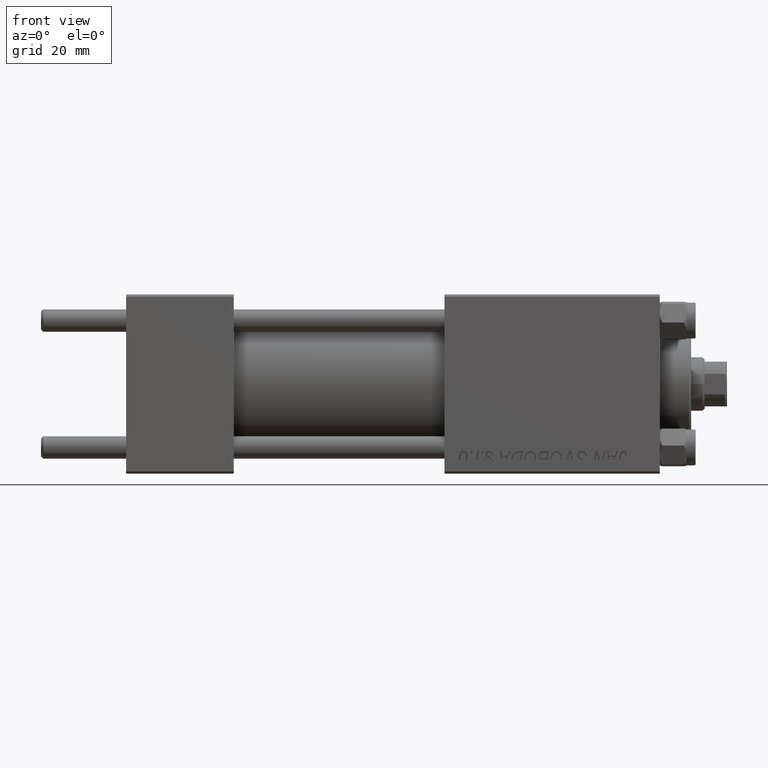
[diagram: clean part render]
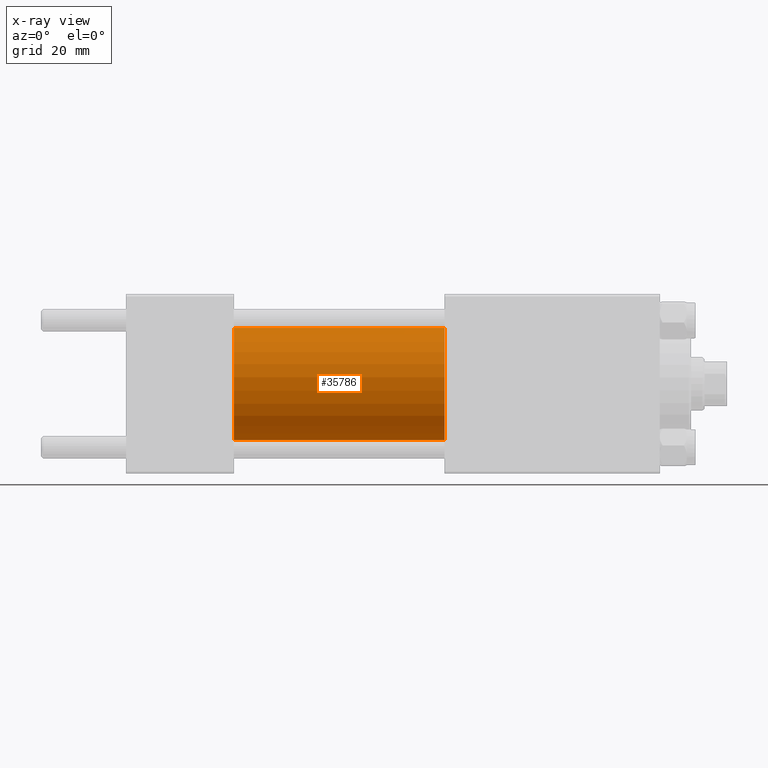
[diagram: x-ray — body ghosted, one internal face saturated and labeled with its STEP entity id]
A machine part, front view, then the same camera in x-ray: the body is ghosted and one INTERNAL B-rep face — a face not visible from any outside direction — is saturated and labeled: STEP entity #35786.
In plain terms, the highlighted cylindrical surface (partial cylindrical patch) has radius 12.5 mm, axis along (-1, -0, -0).
Its self-contained STEP definition (entity closure, byte-faithful):
#890 = VECTOR ( 'NONE', #36552, 1000.000000000000000 ) ;
#1722 = AXIS2_PLACEMENT_3D ( 'NONE', #16631, #36031, #8789 ) ;
#4030 = CARTESIAN_POINT ( 'NONE',  ( 71.00000000000001421, 0.000000000000000000, 0.000000000000000000 ) ) ;
#5508 = LINE ( 'NONE', #29245, #890 ) ;
#5564 = CARTESIAN_POINT ( 'NONE',  ( 71.00000000000001421, 0.000000000000000000, 12.49999999999999645 ) ) ;
#5766 = VECTOR ( 'NONE', #20892, 1000.000000000000000 ) ;
#6176 = CARTESIAN_POINT ( 'NONE',  ( 71.00000000000001421, 0.000000000000000000, 0.000000000000000000 ) ) ;
#8789 = DIRECTION ( 'NONE',  ( 0.000000000000000000, 0.000000000000000000, -1.000000000000000000 ) ) ;
#10598 = CIRCLE ( 'NONE', #1722, 12.49999999999999645 ) ;
#10854 = ORIENTED_EDGE ( 'NONE', *, *, #45034, .F. ) ;
#11603 = ORIENTED_EDGE ( 'NONE', *, *, #21379, .T. ) ;
#14264 = FACE_OUTER_BOUND ( 'NONE', #19233, .T. ) ;
#15993 = CARTESIAN_POINT ( 'NONE',  ( 24.00000000000000000, 0.000000000000000000, 12.49999999999999645 ) ) ;
#16063 = VERTEX_POINT ( 'NONE', #5564 ) ;
#16631 = CARTESIAN_POINT ( 'NONE',  ( 24.00000000000000000, 0.000000000000000000, 0.000000000000000000 ) ) ;
#17688 = AXIS2_PLACEMENT_3D ( 'NONE', #4030, #27530, #27024 ) ;
#17963 = ORIENTED_EDGE ( 'NONE', *, *, #43160, .T. ) ;
#18194 = VERTEX_POINT ( 'NONE', #15993 ) ;
#19233 = EDGE_LOOP ( 'NONE', ( #11603, #17963, #10854, #48186 ) ) ;
#20892 = DIRECTION ( 'NONE',  ( -1.000000000000000000, -0.000000000000000000, -0.000000000000000000 ) ) ;
#21379 = EDGE_CURVE ( 'NONE', #16063, #24937, #31395, .T. ) ;
#22555 = AXIS2_PLACEMENT_3D ( 'NONE', #6176, #48339, #40999 ) ;
#24937 = VERTEX_POINT ( 'NONE', #34506 ) ;
#27024 = DIRECTION ( 'NONE',  ( 0.000000000000000000, 0.000000000000000000, -1.000000000000000000 ) ) ;
#27530 = DIRECTION ( 'NONE',  ( 1.000000000000000000, 0.000000000000000000, 0.000000000000000000 ) ) ;
#28470 = LINE ( 'NONE', #40058, #5766 ) ;
#28671 = CYLINDRICAL_SURFACE ( 'NONE', #22555, 12.49999999999999645 ) ;
#29245 = CARTESIAN_POINT ( 'NONE',  ( 71.00000000000001421, 1.530808498934191127E-15, -12.49999999999999645 ) ) ;
#31395 = CIRCLE ( 'NONE', #17688, 12.49999999999999645 ) ;
#34506 = CARTESIAN_POINT ( 'NONE',  ( 71.00000000000001421, 1.530808498934191127E-15, -12.49999999999999645 ) ) ;
#35786 = ADVANCED_FACE ( 'NONE', ( #14264 ), #28671, .F. ) ;
#36031 = DIRECTION ( 'NONE',  ( 1.000000000000000000, 0.000000000000000000, 0.000000000000000000 ) ) ;
#36552 = DIRECTION ( 'NONE',  ( -1.000000000000000000, -0.000000000000000000, -0.000000000000000000 ) ) ;
#40058 = CARTESIAN_POINT ( 'NONE',  ( 71.00000000000001421, 0.000000000000000000, 12.49999999999999645 ) ) ;
#40593 = VERTEX_POINT ( 'NONE', #44332 ) ;
#40999 = DIRECTION ( 'NONE',  ( 0.000000000000000000, 0.000000000000000000, 1.000000000000000000 ) ) ;
#43160 = EDGE_CURVE ( 'NONE', #24937, #40593, #5508, .T. ) ;
#44332 = CARTESIAN_POINT ( 'NONE',  ( 24.00000000000000000, 1.530808498934191127E-15, -12.49999999999999645 ) ) ;
#45034 = EDGE_CURVE ( 'NONE', #18194, #40593, #10598, .T. ) ;
#45098 = EDGE_CURVE ( 'NONE', #16063, #18194, #28470, .T. ) ;
#48186 = ORIENTED_EDGE ( 'NONE', *, *, #45098, .F. ) ;
#48339 = DIRECTION ( 'NONE',  ( -1.000000000000000000, -0.000000000000000000, -0.000000000000000000 ) ) ;